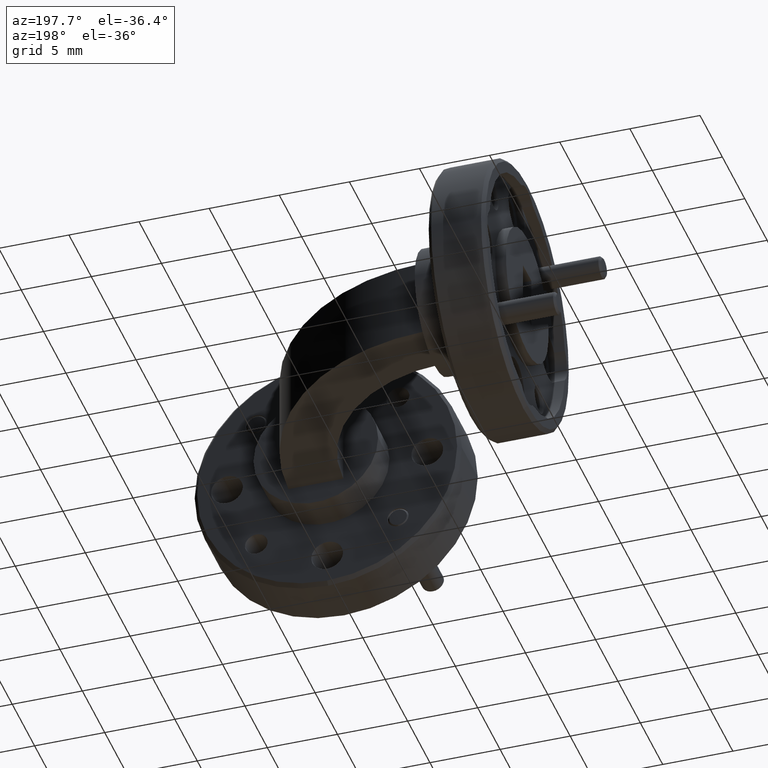
[diagram: clean part render]
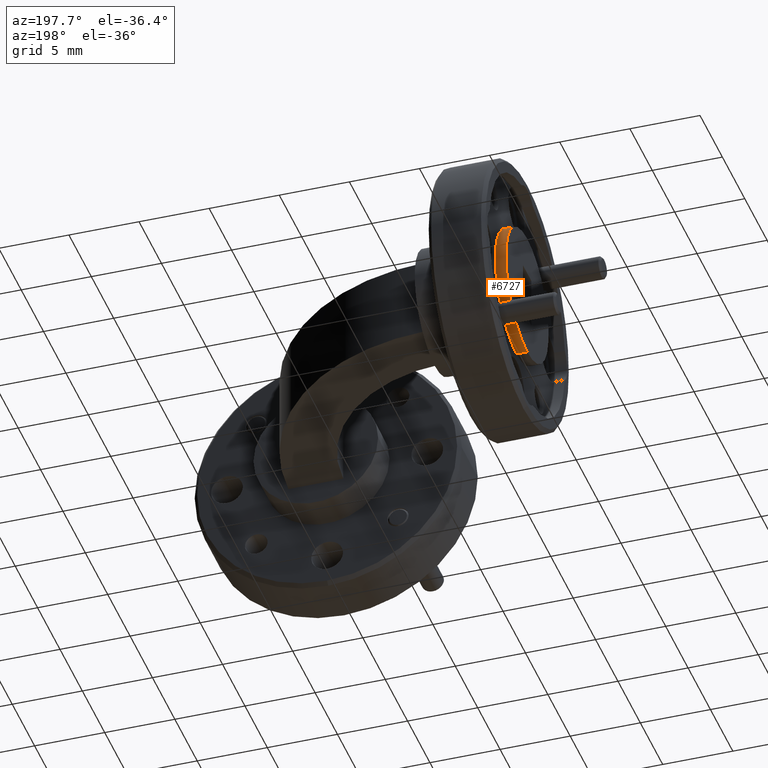
[diagram: same view with one face highlighted and labeled with its STEP entity id]
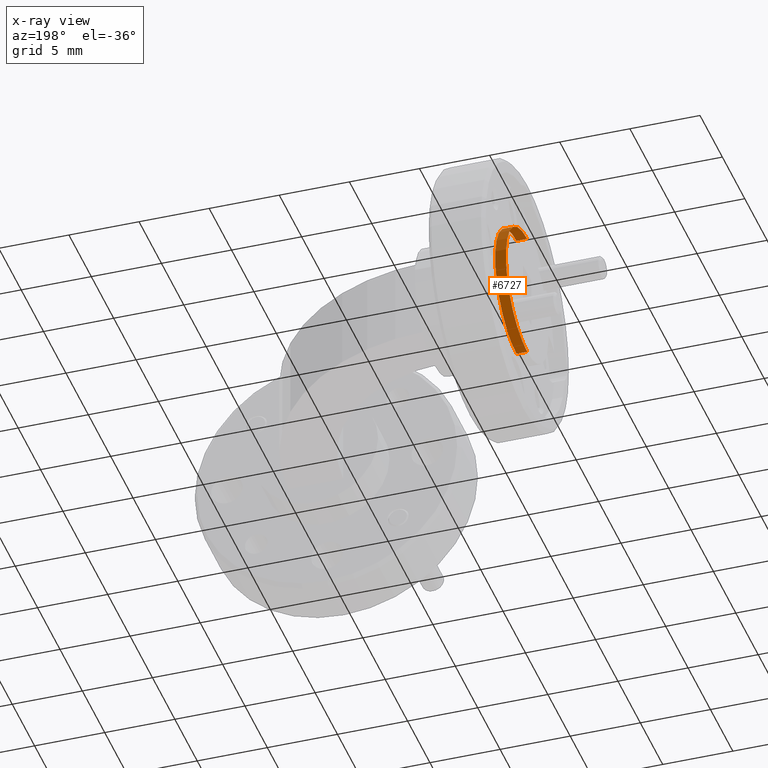
[diagram: x-ray of the same camera — body ghosted, the highlighted face saturated]
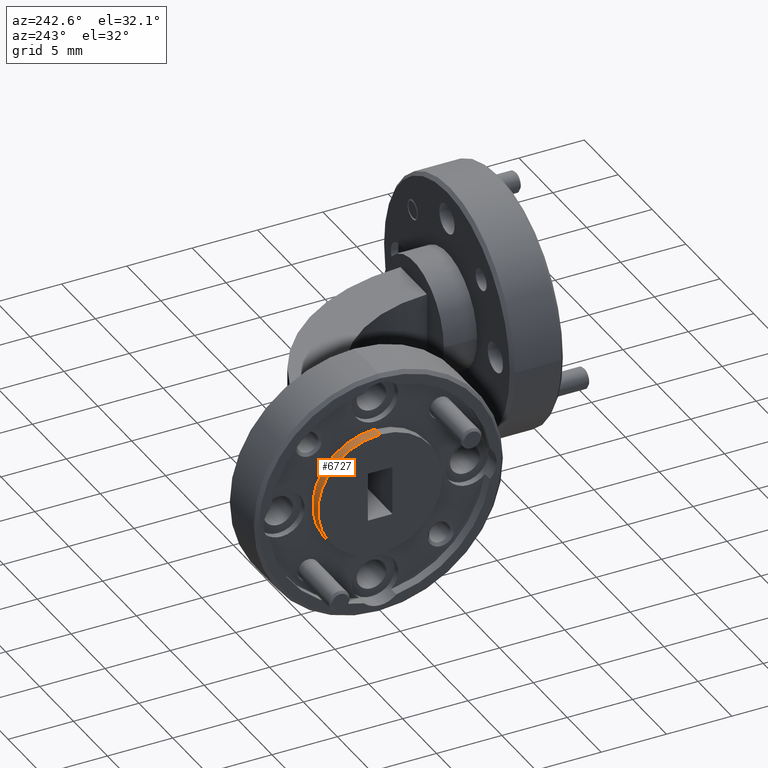
[diagram: same view with one face highlighted and labeled with its STEP entity id]
A machine part, auxiliary view. The second image highlights one B-rep face of the part: STEP entity #6727.
The next image is the same camera in x-ray: the body ghosted, the highlighted face saturated — about 0% of this face is hidden behind the body in this view.
A second angle (auxiliary view) of the same face is appended — the face is thin or edge-on in the first view.
In plain terms, the highlighted cylindrical surface (partial cylindrical patch) has radius 4.7625 mm, axis along (-1, -0, -0).
Its self-contained STEP definition (entity closure, byte-faithful):
#135 = EDGE_CURVE ( 'NONE', #7386, #6113, #6399, .T. ) ;
#478 = VECTOR ( 'NONE', #1625, 39.37007874015748143 ) ;
#831 = AXIS2_PLACEMENT_3D ( 'NONE', #1796, #7326, #6160 ) ;
#1034 = VERTEX_POINT ( 'NONE', #3578 ) ;
#1042 = EDGE_LOOP ( 'NONE', ( #6263, #4065, #7262, #3662 ) ) ;
#1350 = DIRECTION ( 'NONE',  ( -1.000000000000000000, -0.000000000000000000, -0.000000000000000000 ) ) ;
#1625 = DIRECTION ( 'NONE',  ( -1.000000000000000000, -0.000000000000000000, -0.000000000000000000 ) ) ;
#1663 = CARTESIAN_POINT ( 'NONE',  ( -2.069202687138052443, 0.6170554953585049018, 0.3315634001413547138 ) ) ;
#1796 = CARTESIAN_POINT ( 'NONE',  ( -2.069202687138052443, 0.6170554953585049018, 0.5190634001413547693 ) ) ;
#1979 = AXIS2_PLACEMENT_3D ( 'NONE', #5243, #2213, #2496 ) ;
#2035 = EDGE_CURVE ( 'NONE', #6113, #3148, #7021, .T. ) ;
#2213 = DIRECTION ( 'NONE',  ( -1.000000000000000000, 0.000000000000000000, 0.000000000000000000 ) ) ;
#2379 = AXIS2_PLACEMENT_3D ( 'NONE', #2487, #1350, #6839 ) ;
#2487 = CARTESIAN_POINT ( 'NONE',  ( -2.069202687138052443, 0.6170554953585049018, 0.5190634001413547693 ) ) ;
#2496 = DIRECTION ( 'NONE',  ( 0.000000000000000000, 0.000000000000000000, 1.000000000000000000 ) ) ;
#3148 = VERTEX_POINT ( 'NONE', #4369 ) ;
#3391 = VECTOR ( 'NONE', #6979, 39.37007874015748143 ) ;
#3578 = CARTESIAN_POINT ( 'NONE',  ( -2.069202687138052443, 0.6170554953585049018, 0.3315634001413547138 ) ) ;
#3662 = ORIENTED_EDGE ( 'NONE', *, *, #135, .F. ) ;
#3822 = EDGE_CURVE ( 'NONE', #7386, #1034, #4012, .T. ) ;
#4012 = CIRCLE ( 'NONE', #831, 0.1874999999999999722 ) ;
#4065 = ORIENTED_EDGE ( 'NONE', *, *, #7158, .T. ) ;
#4369 = CARTESIAN_POINT ( 'NONE',  ( -2.099202687138052248, 0.6170554953585049018, 0.3315634001413547138 ) ) ;
#5243 = CARTESIAN_POINT ( 'NONE',  ( -2.099202687138052248, 0.6170554953585049018, 0.5190634001413547693 ) ) ;
#5859 = CARTESIAN_POINT ( 'NONE',  ( -2.069202687138052443, 0.6170554953585049018, 0.7065634001413546583 ) ) ;
#5964 = CARTESIAN_POINT ( 'NONE',  ( -2.099202687138052248, 0.6170554953585049018, 0.7065634001413546583 ) ) ;
#6113 = VERTEX_POINT ( 'NONE', #5964 ) ;
#6155 = FACE_OUTER_BOUND ( 'NONE', #1042, .T. ) ;
#6160 = DIRECTION ( 'NONE',  ( 0.000000000000000000, 0.000000000000000000, 1.000000000000000000 ) ) ;
#6263 = ORIENTED_EDGE ( 'NONE', *, *, #3822, .T. ) ;
#6399 = LINE ( 'NONE', #5859, #3391 ) ;
#6727 = ADVANCED_FACE ( 'NONE', ( #6155 ), #7357, .T. ) ;
#6839 = DIRECTION ( 'NONE',  ( 0.000000000000000000, 0.000000000000000000, 1.000000000000000000 ) ) ;
#6979 = DIRECTION ( 'NONE',  ( -1.000000000000000000, -0.000000000000000000, -0.000000000000000000 ) ) ;
#7021 = CIRCLE ( 'NONE', #1979, 0.1874999999999999722 ) ;
#7040 = CARTESIAN_POINT ( 'NONE',  ( -2.069202687138052443, 0.6170554953585049018, 0.7065634001413546583 ) ) ;
#7049 = LINE ( 'NONE', #1663, #478 ) ;
#7158 = EDGE_CURVE ( 'NONE', #1034, #3148, #7049, .T. ) ;
#7262 = ORIENTED_EDGE ( 'NONE', *, *, #2035, .F. ) ;
#7326 = DIRECTION ( 'NONE',  ( -1.000000000000000000, 0.000000000000000000, 0.000000000000000000 ) ) ;
#7357 = CYLINDRICAL_SURFACE ( 'NONE', #2379, 0.1874999999999999722 ) ;
#7386 = VERTEX_POINT ( 'NONE', #7040 ) ;